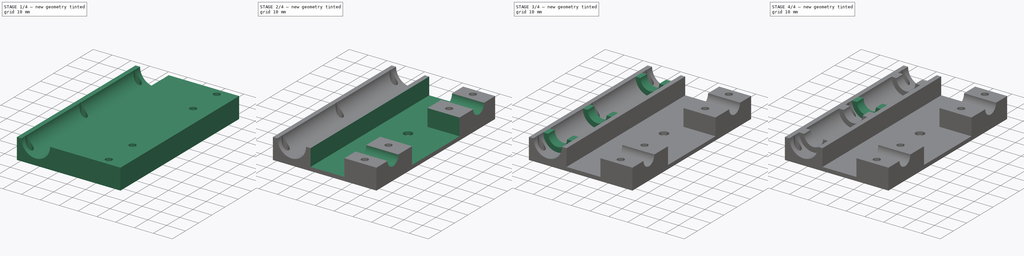
[diagram: build sequence overview — one tinted view per stage of 4, left to right]
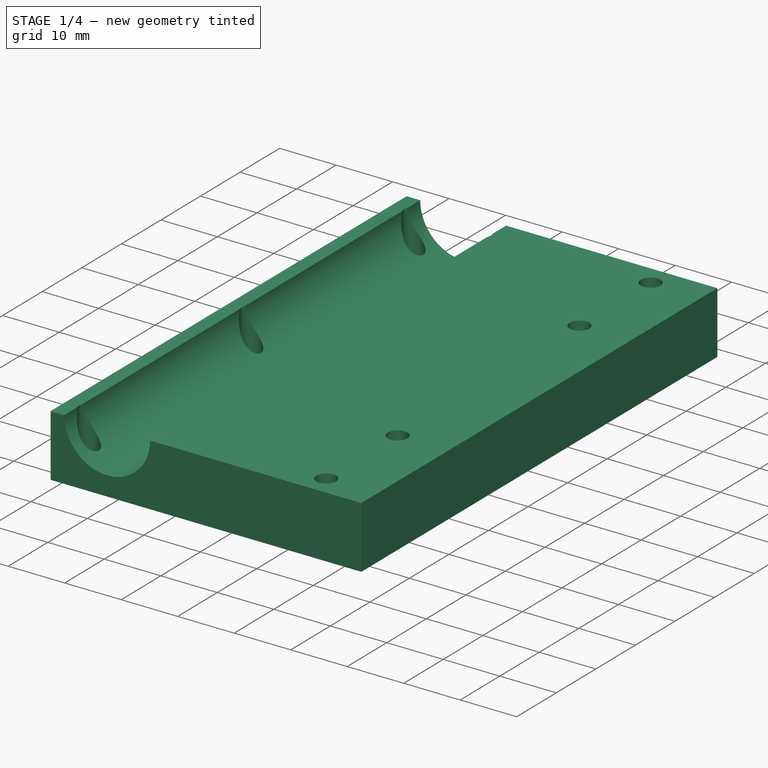
[diagram: stage 1 of 4 — iso view after this stage's code; geometry added in this stage tinted green]
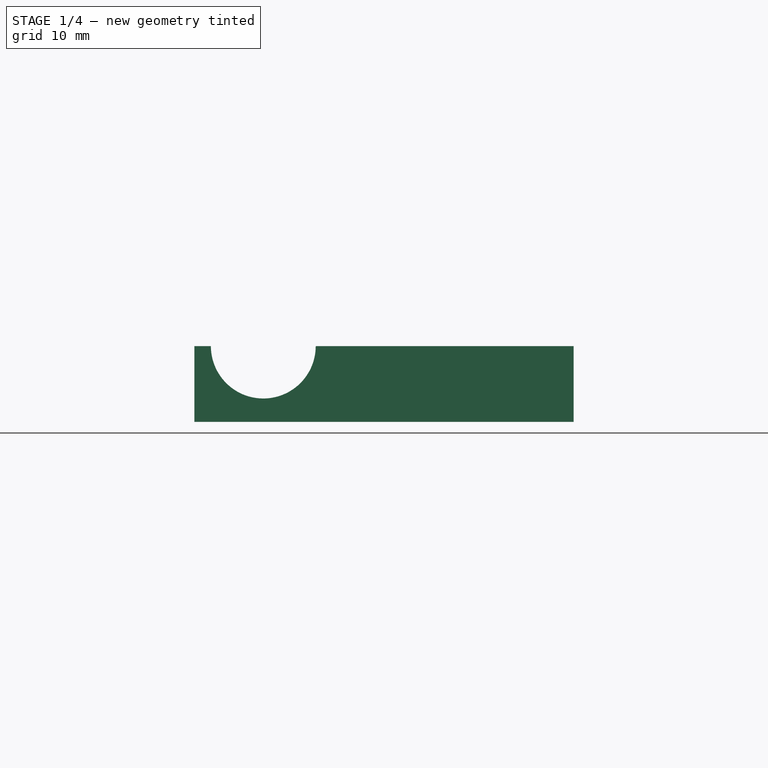
[diagram: stage 1 of 4 — front view after this stage's code; geometry added in this stage tinted green]
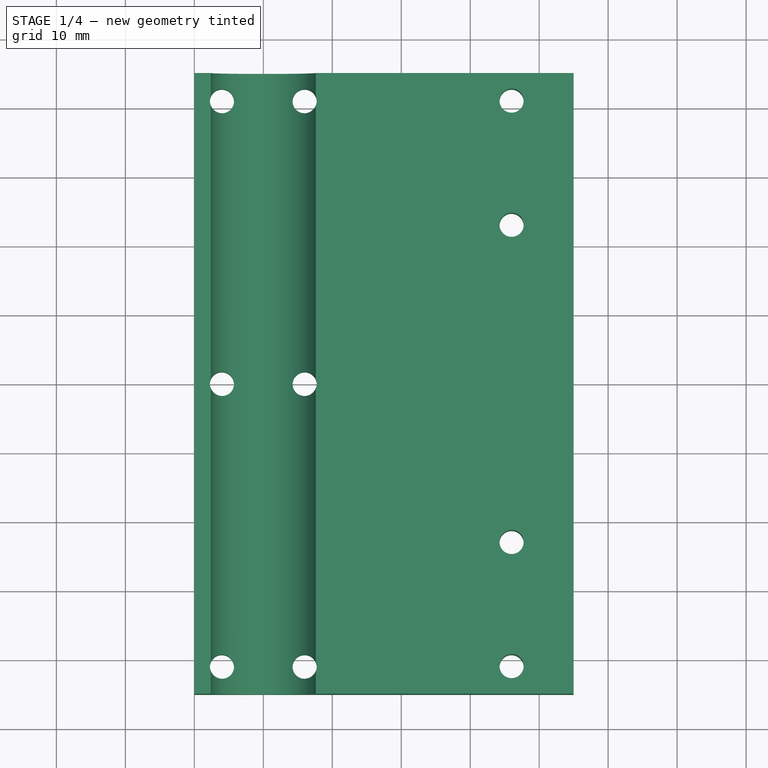
[diagram: stage 1 of 4 — top view after this stage's code; geometry added in this stage tinted green]
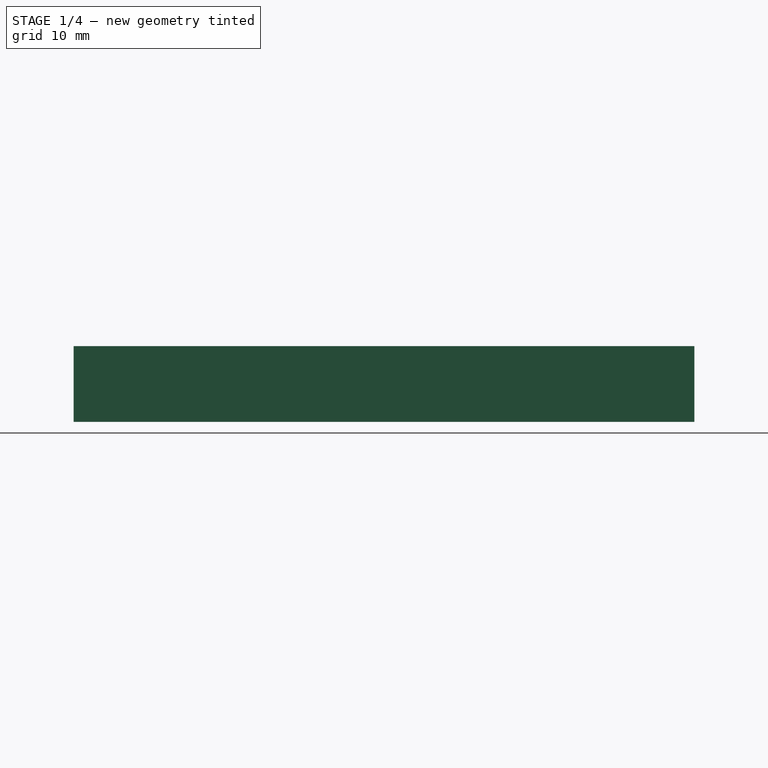
[diagram: stage 1 of 4 — right view after this stage's code; geometry added in this stage tinted green]
FCSTD DOCUMENT  (FreeCAD 0.16R4945 (Git))
Label: XY-block-top wide
License: CC-BY 3.0
LicenseURL: http://creativecommons.org/licenses/by/3.0/
objects: Sketcher::SketchObject×12, PartDesign::Pocket×7, PartDesign::Pad×5, Part::MultiFuse×1
note: 37 computed .brp shape members not serialized (recipe doc carries the construction recipe); baked Part::Feature solids carry a one-line shape summary decoded from their .brp

FEATURE [Sketcher::SketchObject] Sketch
  sketch-geometry (4):
    g0: LineSegment StartX=-10 StartY=-45 StartZ=0 EndX=45 EndY=-45 EndZ=0
    g1: LineSegment StartX=45 StartY=-45 StartZ=0 EndX=45 EndY=45 EndZ=0
    g2: LineSegment StartX=45 StartY=45 StartZ=0 EndX=-10 EndY=45 EndZ=0
    g3: LineSegment StartX=-10 StartY=45 StartZ=0 EndX=-10 EndY=-45 EndZ=0
  constraints (12):
    c: Coincident(g0,g1)
    c: Coincident(g1,g2)
    c: Coincident(g2,g3)
    c: Coincident(g3,g0)
    c: Horizontal(g0)
    c: Horizontal(g2)
    c: Vertical(g1)
    c: Vertical(g3)
    c: DistanceX(g0) = 55
    c: DistanceY(g1) = 90
    c: DistanceX(g0) = -10
    c: DistanceY(g0) = -45
FEATURE [PartDesign::Pad] Pad
  Length = 11
  Length2 = 100
  Sketch = -> Sketch
  Type = 0
FEATURE [Sketcher::SketchObject] Sketch001
  Placement = pos=(0,-45,0) rot=(1,0,0;1.5708rad)
  Support = -> Pad [Face1]
  sketch-geometry (1):
    g0: Circle CenterX=0 CenterY=11 CenterZ=0 NormalX=0 NormalY=0 NormalZ=1 Radius=7.6
  constraints (3):
    c: Radius(g0) = 7.6
    c: DistanceX(g0) = 0
    c: DistanceY(g0) = 11
FEATURE [PartDesign::Pocket] Pocket  label="Pocket-lm8uu-hole"
  Length = 5
  Sketch = -> Sketch001
  Type = 1
FEATURE [Sketcher::SketchObject] Sketch002
  ExternalGeometry = -> [Pocket]
  Placement = pos=(0,0,11) rot=(0,0,1;0rad)
  Support = -> Pocket [Face4]
  sketch-geometry (17):
    g0: Circle CenterX=-6 CenterY=41 CenterZ=0 NormalX=0 NormalY=0 NormalZ=1 Radius=1.75
    g1: Circle CenterX=-6 CenterY=-41 CenterZ=0 NormalX=0 NormalY=0 NormalZ=1 Radius=1.75
    g2: LineSegment [constr] StartX=-6 StartY=41 StartZ=0 EndX=36 EndY=41 EndZ=0
    g3: LineSegment [constr] StartX=36 StartY=41 StartZ=0 EndX=36 EndY=-41 EndZ=0
    g4: LineSegment [constr] StartX=36 StartY=-41 StartZ=0 EndX=-6 EndY=-41 EndZ=0
    g5: Circle CenterX=6 CenterY=41 CenterZ=0 NormalX=0 NormalY=0 NormalZ=1 Radius=1.75
    g6: Circle CenterX=6 CenterY=-41 CenterZ=0 NormalX=0 NormalY=0 NormalZ=1 Radius=1.75
    g7: Circle CenterX=6 CenterY=0 CenterZ=0 NormalX=0 NormalY=0 NormalZ=1 Radius=1.75
    g8: Circle CenterX=-6 CenterY=0 CenterZ=0 NormalX=0 NormalY=0 NormalZ=1 Radius=1.75
    g9: LineSegment [constr] StartX=6 StartY=41 StartZ=0 EndX=6 EndY=-41 EndZ=0
    g10: LineSegment [constr] StartX=-6 StartY=0 StartZ=0 EndX=6 EndY=0 EndZ=0
    g11: LineSegment [constr] StartX=-6 StartY=-41 StartZ=0 EndX=-6 EndY=0 EndZ=0
    g12: LineSegment [constr] StartX=-6 StartY=0 StartZ=0 EndX=-6 EndY=41 EndZ=0
    g13: Circle CenterX=36 CenterY=41 CenterZ=0 NormalX=0 NormalY=0 NormalZ=1 Radius=1.75
    g14: Circle CenterX=36 CenterY=23 CenterZ=0 NormalX=0 NormalY=0 NormalZ=1 Radius=1.75
    g15: Circle CenterX=36 CenterY=-23 CenterZ=0 NormalX=0 NormalY=0 NormalZ=1 Radius=1.75
    g16: Circle CenterX=36 CenterY=-41 CenterZ=0 NormalX=0 NormalY=0 NormalZ=1 Radius=1.75
  constraints (44):
    c: Radius(g0) = 1.75
    c: Equal(g0,g1)
    c: Coincident(g2,g3)
    c: Coincident(g3,g4)
    c: Horizontal(g2)
    c: Horizontal(g4)
    c: Vertical(g3)
    c: Coincident(g0,g2)
    c: Coincident(g4,g1)
    c: Equal(g0,g5)
    c: Equal(g0,g6)
    c: Equal(g8,g0)
    c: Equal(g7,g0)
    c: Coincident(g9,g5)
    c: Coincident(g9,g6)
    c: PointOnObject(g10,g9)
    c: Horizontal(g10)
    c: Vertical(g9)
    c: PointOnObject(g5,g2)
    c: PointOnObject(g6,g4)
    c: Coincident(g8,g10)
    c: Coincident(g7,g10)
    c: Coincident(g11,g1)
    c: Coincident(g11,g8)
    c: Vertical(g11)
    c: Coincident(g12,g8)
    c: Coincident(g12,g0)
    c: Vertical(g12)
    c: Equal(g12,g11)
    c: DistanceX(g1,g6) = 12
    c: DistanceX(g-1,g8) = -6
    c: DistanceY(g-1,g1) = -41
    c: Symmetric(g-3,g-3,g10)
    c: Coincident(g13,g2)
    c: PointOnObject(g14,g3)
    c: PointOnObject(g15,g3)
    c: Coincident(g16,g3)
    c: Radius(g16) = 1.75
    c: Equal(g16,g15)
    c: Equal(g15,g14)
    c: Equal(g14,g13)
    c: Distance(g2,g14) = 18
    c: Distance(g15,g3) = 18
    c: Distance(g0,g2) = 42
FEATURE [PartDesign::Pocket] Pocket001  label="Pocket-mount-holes"
  Length = 5
  Sketch = -> Sketch002
  Type = 1
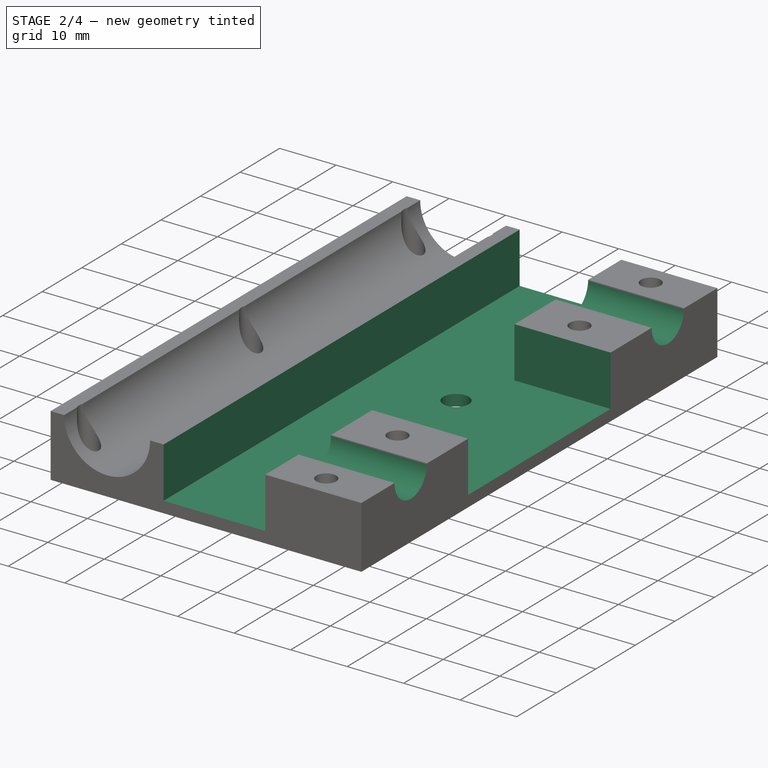
[diagram: stage 2 of 4 — iso view after this stage's code; geometry added in this stage tinted green]
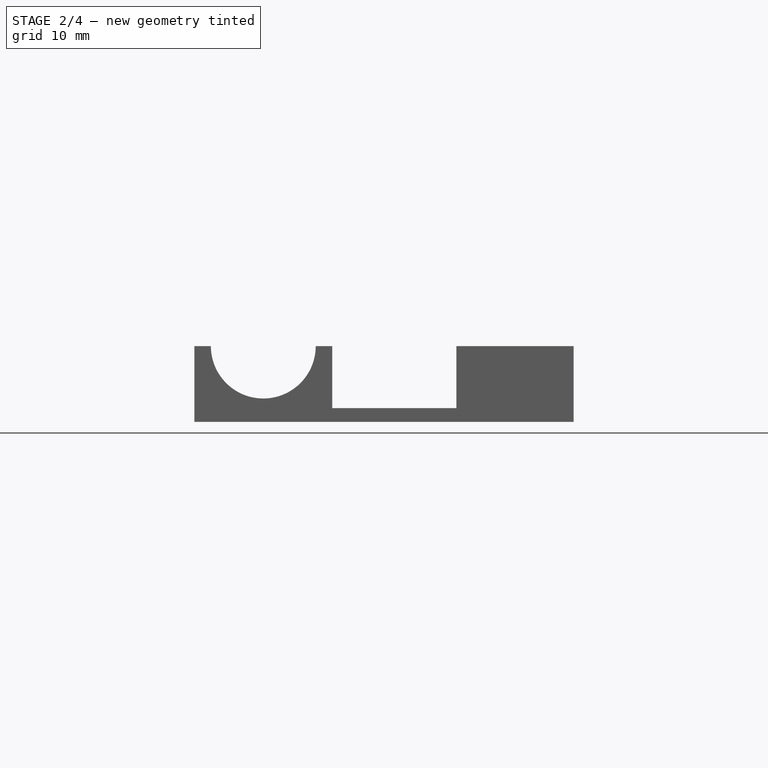
[diagram: stage 2 of 4 — front view after this stage's code; geometry added in this stage tinted green]
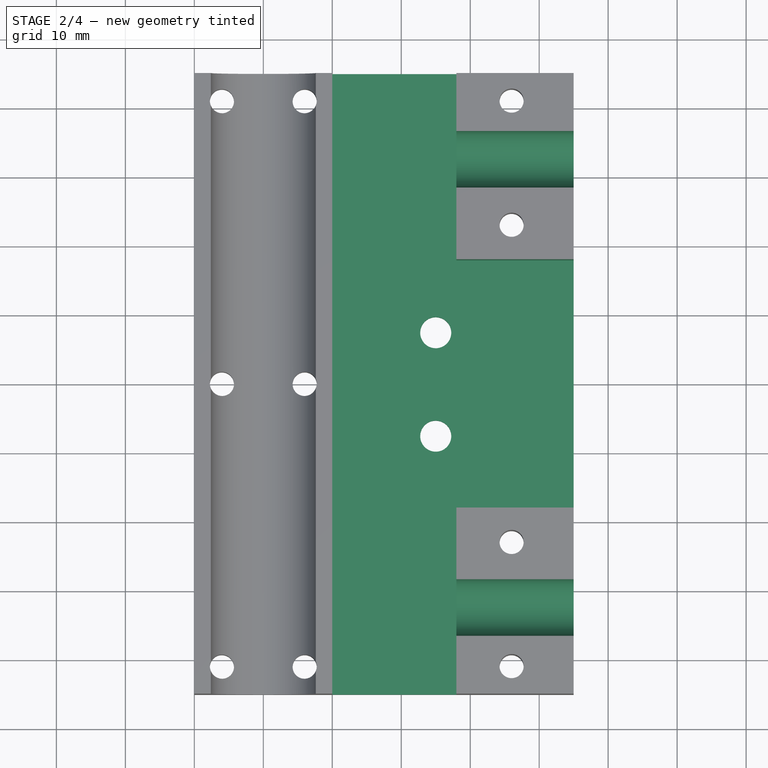
[diagram: stage 2 of 4 — top view after this stage's code; geometry added in this stage tinted green]
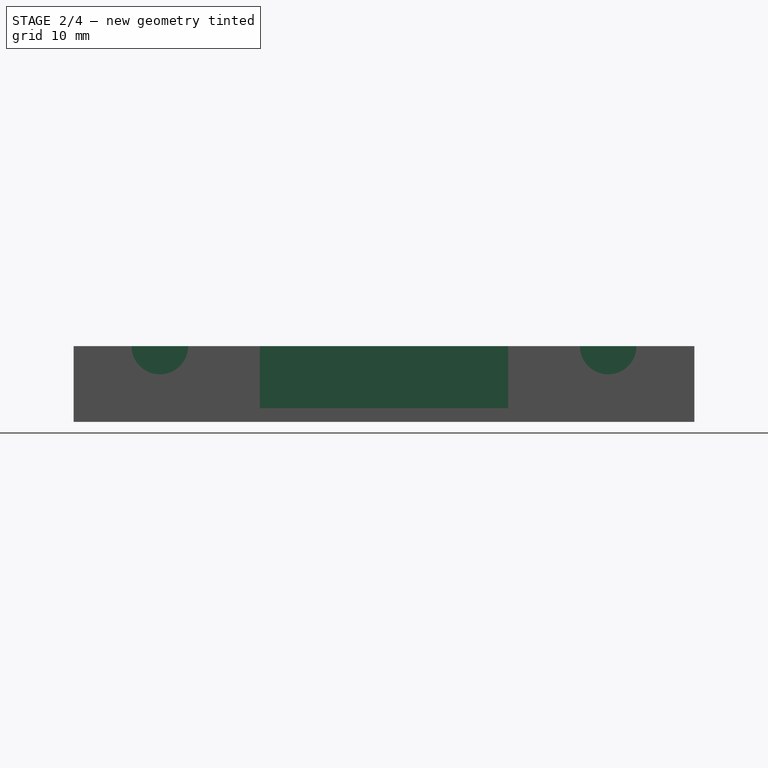
[diagram: stage 2 of 4 — right view after this stage's code; geometry added in this stage tinted green]
FEATURE [Sketcher::SketchObject] Sketch003
  Placement = pos=(0,0,11) rot=(0,0,1;0rad)
  Support = -> Pocket001 [Face4]
  sketch-geometry (8):
    g0: LineSegment StartX=10 StartY=50 StartZ=0 EndX=10 EndY=-50 EndZ=0
    g1: LineSegment StartX=10 StartY=-50 StartZ=0 EndX=28 EndY=-50 EndZ=0
    g2: LineSegment StartX=28 StartY=-50 StartZ=0 EndX=28 EndY=-18 EndZ=0
    g3: LineSegment StartX=28 StartY=-18 StartZ=0 EndX=48 EndY=-18 EndZ=0
    g4: LineSegment StartX=48 StartY=-18 StartZ=0 EndX=48 EndY=18 EndZ=0
    g5: LineSegment StartX=48 StartY=18 StartZ=0 EndX=28 EndY=18 EndZ=0
    g6: LineSegment StartX=28 StartY=18 StartZ=0 EndX=28 EndY=50 EndZ=0
    g7: LineSegment StartX=28 StartY=50 StartZ=0 EndX=10 EndY=50 EndZ=0
  constraints (24):
    c: Vertical(g0)
    c: Horizontal(g1)
    c: Coincident(g1,g2)
    c: Vertical(g2)
    c: Horizontal(g3)
    c: Coincident(g3,g4)
    c: Vertical(g4)
    c: Coincident(g4,g5)
    c: Horizontal(g5)
    c: Vertical(g6)
    c: Coincident(g6,g7)
    c: Coincident(g7,g0)
    c: Horizontal(g7)
    c: Coincident(g1,g0)
    c: Equal(g1,g7)
    c: Equal(g6,g2)
    c: DistanceX(g-1,g0) = 10
    c: DistanceX(g7) = -18
    c: DistanceY(g-1,g0) = 50
    c: DistanceY(g4) = 36
    c: Distance(g3) = 20
    c: Coincident(g5,g6)
    c: Coincident(g3,g2)
    c: Symmetric(g1,g6,g-1)
FEATURE [PartDesign::Pocket] Pocket002  label="Pocket-belt-path"
  Length = 9
  Sketch = -> Sketch003
  Type = 0
FEATURE [Sketcher::SketchObject] Sketch004
  Placement = pos=(0,0,0) rot=(1,0,0;3.14159rad)
  Support = -> Pocket002 [Face2]
  sketch-geometry (3):
    g0: Circle CenterX=25 CenterY=7.5 CenterZ=0 NormalX=0 NormalY=0 NormalZ=1 Radius=2.25
    g1: Circle CenterX=25 CenterY=-7.5 CenterZ=0 NormalX=0 NormalY=0 NormalZ=1 Radius=2.25
    g2: LineSegment [constr] StartX=25 StartY=7.5 StartZ=0 EndX=25 EndY=-7.5 EndZ=0
  constraints (8):
    c: Coincident(g2,g0)
    c: Coincident(g2,g1)
    c: Vertical(g2)
    c: DistanceX(g-1,g1) = 25
    c: Equal(g0,g1)
    c: Radius(g0) = 2.25
    c: Distance(g2) = 15
    c: DistanceY(g-1,g0) = 7.5
FEATURE [PartDesign::Pocket] Pocket003  label="Pocket-idler-pulleys-holes"
  Length = 5
  Sketch = -> Sketch004
  Type = 1
FEATURE [Sketcher::SketchObject] Sketch008
  Placement = pos=(45,0,0) rot=(0.57735,0.57735,0.57735;2.0944rad)
  Support = -> Pocket003 [Face3]
  sketch-geometry (2):
    g0: Circle CenterX=-32.5 CenterY=11 CenterZ=0 NormalX=0 NormalY=0 NormalZ=1 Radius=4.1
    g1: Circle CenterX=32.5 CenterY=11 CenterZ=0 NormalX=0 NormalY=0 NormalZ=1 Radius=4.1
  constraints (5):
    c: Symmetric(g0,g1,g-2)
    c: Equal(g0,g1)
    c: Radius(g0) = 4.1
    c: DistanceY(g-1,g0) = 11
    c: DistanceX(g0,g1) = 65
FEATURE [PartDesign::Pocket] Pocket005  label="Pocket-x-axis-holes"
  Length = 20
  Sketch = -> Sketch008
  Type = 0
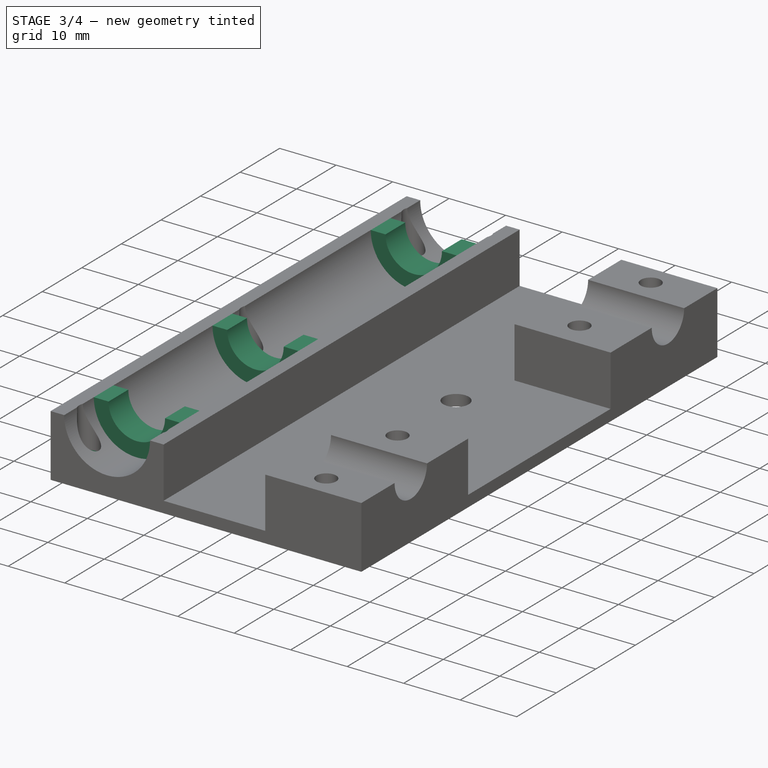
[diagram: stage 3 of 4 — iso view after this stage's code; geometry added in this stage tinted green]
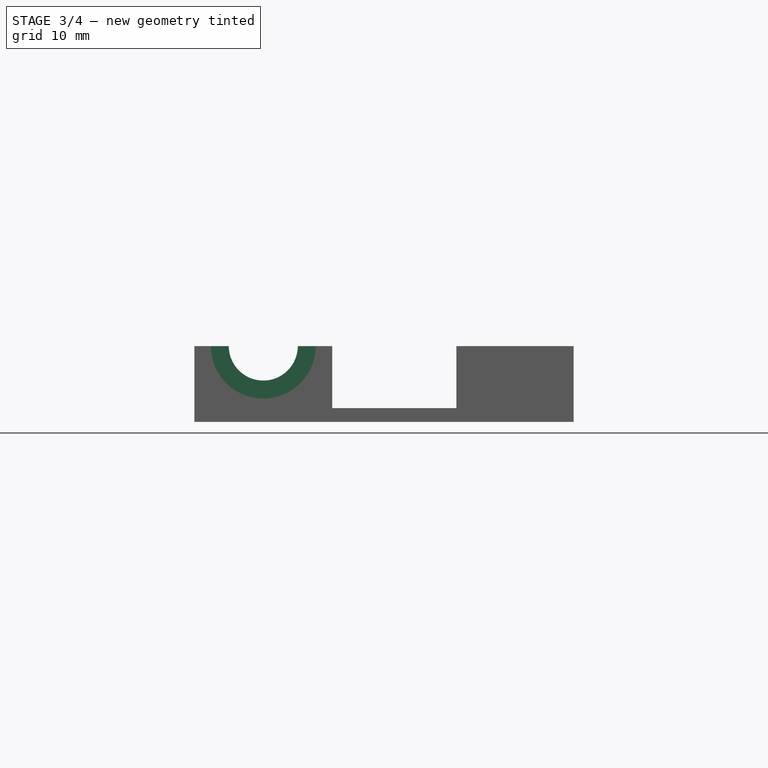
[diagram: stage 3 of 4 — front view after this stage's code; geometry added in this stage tinted green]
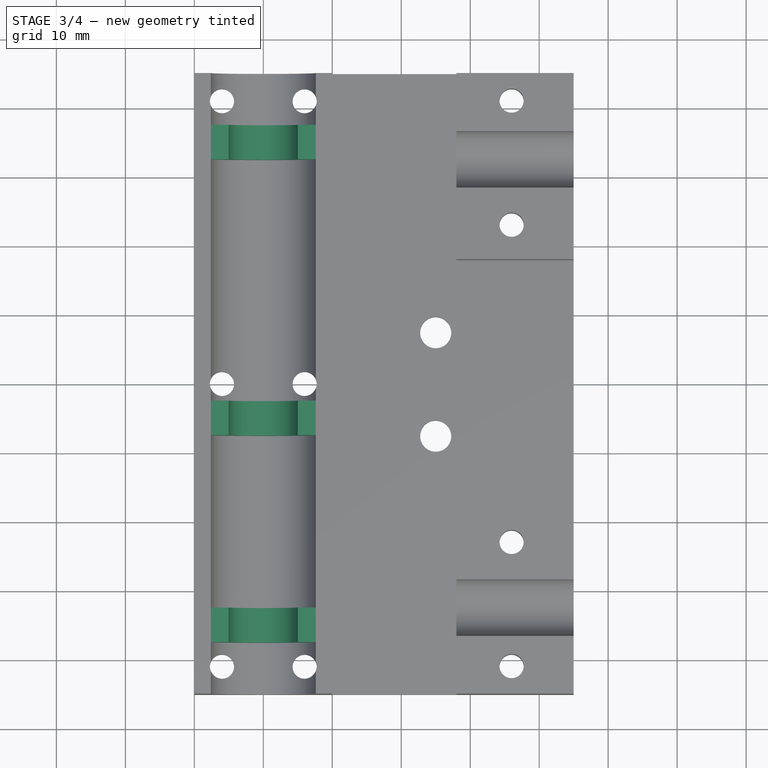
[diagram: stage 3 of 4 — top view after this stage's code; geometry added in this stage tinted green]
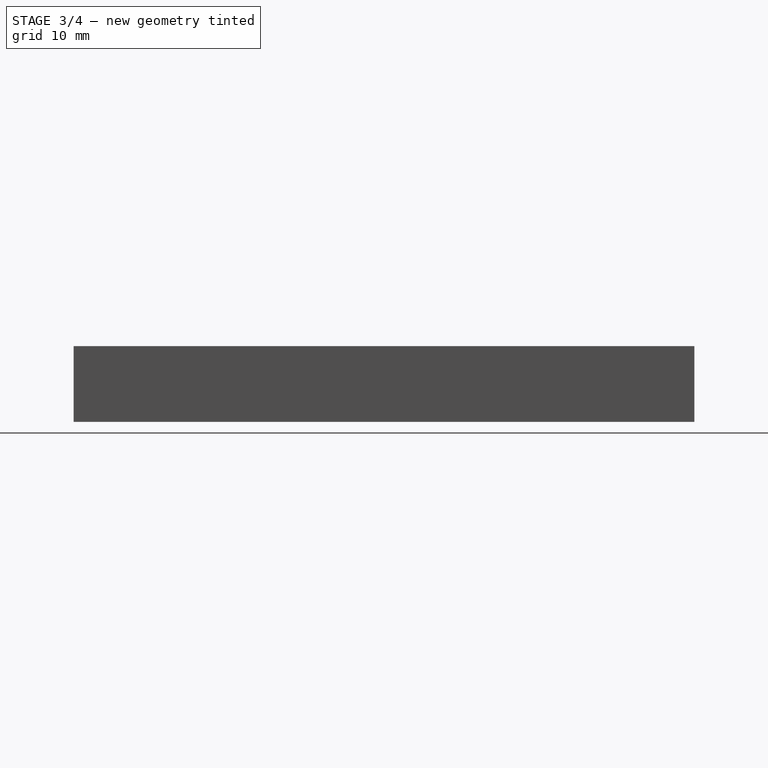
[diagram: stage 3 of 4 — right view after this stage's code; geometry added in this stage tinted green]
FEATURE [PartDesign::Pad] Pad002
  Length = 5
  Length2 = 100
  Placement = pos=(0,-7.5,0) rot=(1,0,0;1.5708rad)
  Reversed = true
  Sketch = -> Sketch019
  Type = 0
FEATURE [PartDesign::Pad] Pad003
  Length = 5
  Length2 = 100
  Placement = pos=(0,32.5,0) rot=(1,0,0;1.5708rad)
  Reversed = true
  Sketch = -> Sketch020
  Type = 0
FEATURE [PartDesign::Pad] Pad004
  Length = 5
  Length2 = 100
  Placement = pos=(0,-32.5,0) rot=(1,0,0;1.5708rad)
  Sketch = -> Sketch021
  Type = 0
FEATURE [Sketcher::SketchObject] Sketch022
  ExternalGeometry = -> [Pocket005]
  Placement = pos=(0,0,0) rot=(1,0,0;3.14159rad)
  Support = -> Pocket005 [Face2]
  sketch-geometry (10):
    g0: Circle CenterX=-6 CenterY=-41 CenterZ=0 NormalX=0 NormalY=0 NormalZ=1 Radius=2.9
    g1: Circle CenterX=6 CenterY=-41 CenterZ=0 NormalX=0 NormalY=0 NormalZ=1 Radius=2.9
    g2: Circle CenterX=36 CenterY=-41 CenterZ=0 NormalX=0 NormalY=0 NormalZ=1 Radius=2.9
    g3: Circle CenterX=6 CenterY=41 CenterZ=0 NormalX=0 NormalY=0 NormalZ=1 Radius=2.9
    g4: Circle CenterX=36 CenterY=41 CenterZ=0 NormalX=0 NormalY=0 NormalZ=1 Radius=2.9
    g5: Circle CenterX=-6 CenterY=41 CenterZ=0 NormalX=0 NormalY=0 NormalZ=1 Radius=2.9
    g6: Circle CenterX=-6 CenterY=0 CenterZ=0 NormalX=0 NormalY=0 NormalZ=1 Radius=2.9
    g7: Circle CenterX=6 CenterY=0 CenterZ=0 NormalX=0 NormalY=0 NormalZ=1 Radius=2.9
    g8: Circle CenterX=36 CenterY=23 CenterZ=0 NormalX=0 NormalY=0 NormalZ=1 Radius=2.9
    g9: Circle CenterX=36 CenterY=-23 CenterZ=0 NormalX=0 NormalY=0 NormalZ=1 Radius=2.9
  constraints (20):
    c: Radius(g0) = 2.9
    c: Equal(g0,g4)
    c: Equal(g0,g1)
    c: Equal(g1,g2)
    c: Equal(g2,g3)
    c: Radius(g5) = 2.9
    c: Equal(g5,g6)
    c: Equal(g5,g7)
    c: Equal(g7,g8)
    c: Equal(g8,g9)
    c: Coincident(g0,g-3)
    c: Coincident(g1,g-4)
    c: Coincident(g2,g-5)
    c: Coincident(g9,g-6)
    c: Coincident(g7,g-7)
    c: Coincident(g6,g-8)
    c: Coincident(g8,g-9)
    c: Coincident(g4,g-10)
    c: Coincident(g3,g-11)
    c: Coincident(g5,g-12)
FEATURE [PartDesign::Pocket] Pocket007
  Length = 3.5
  Sketch = -> Sketch022
  Type = 0
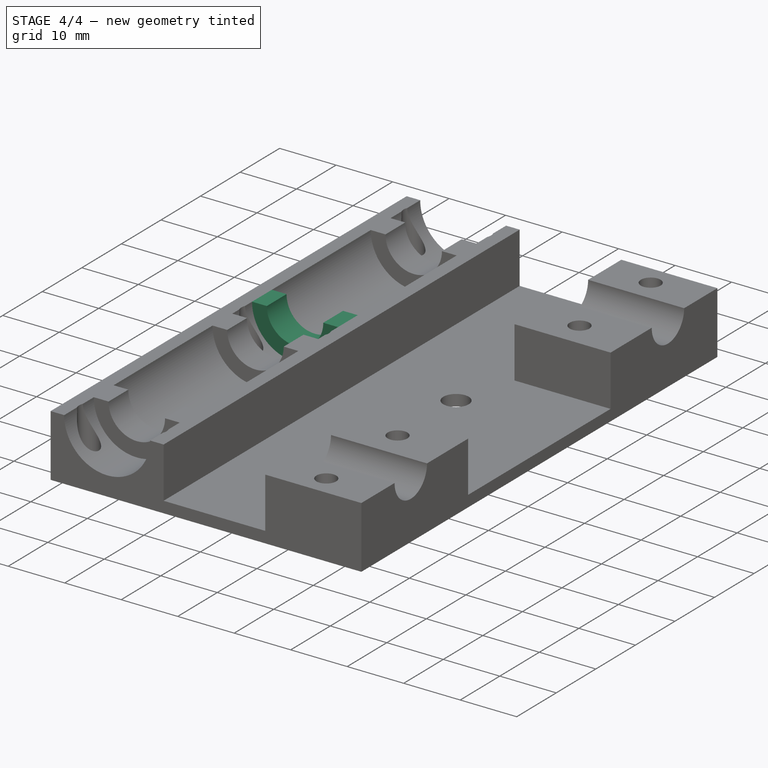
[diagram: stage 4 of 4 — iso view after this stage's code; geometry added in this stage tinted green]
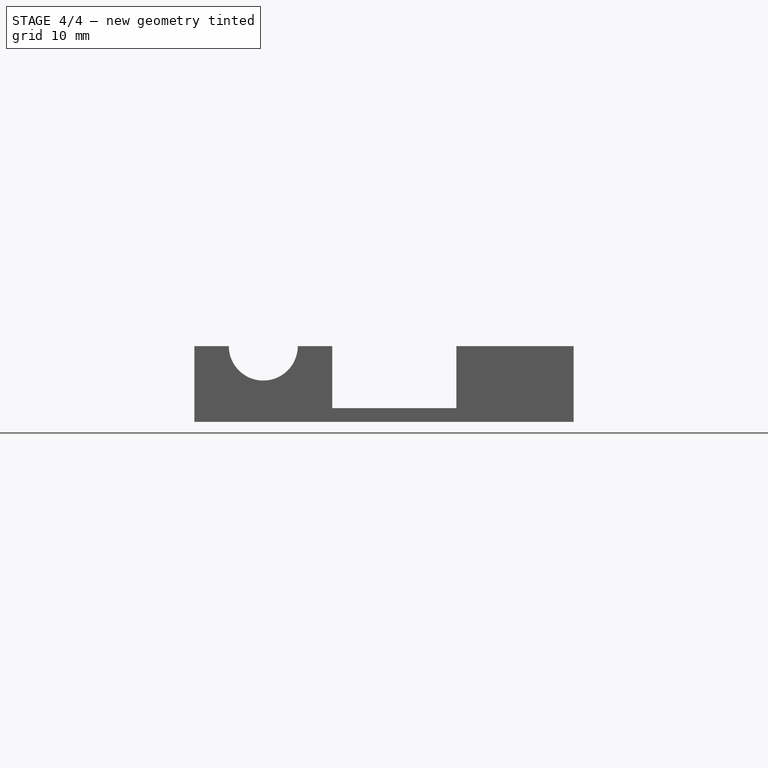
[diagram: stage 4 of 4 — front view after this stage's code; geometry added in this stage tinted green]
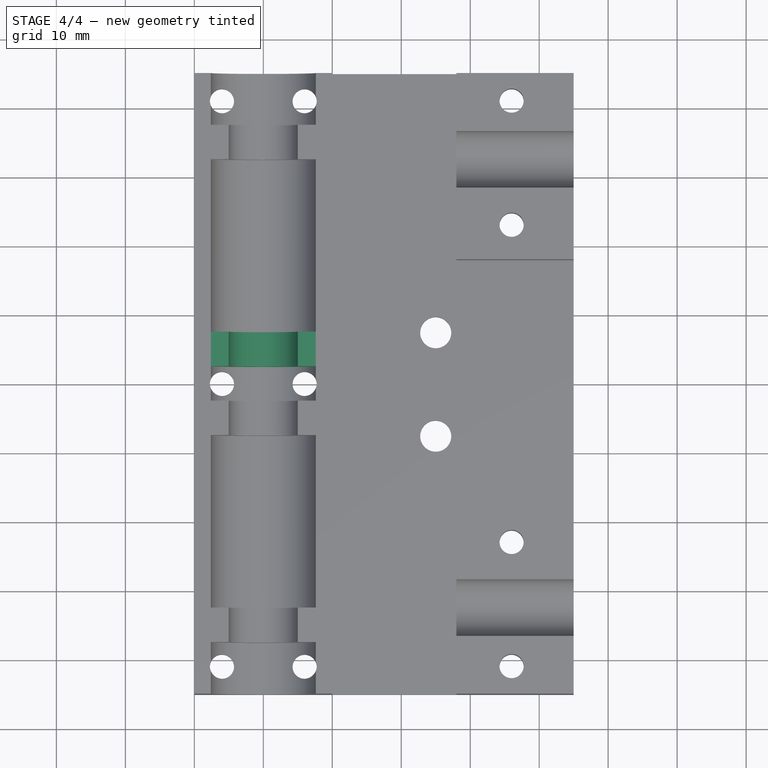
[diagram: stage 4 of 4 — top view after this stage's code; geometry added in this stage tinted green]
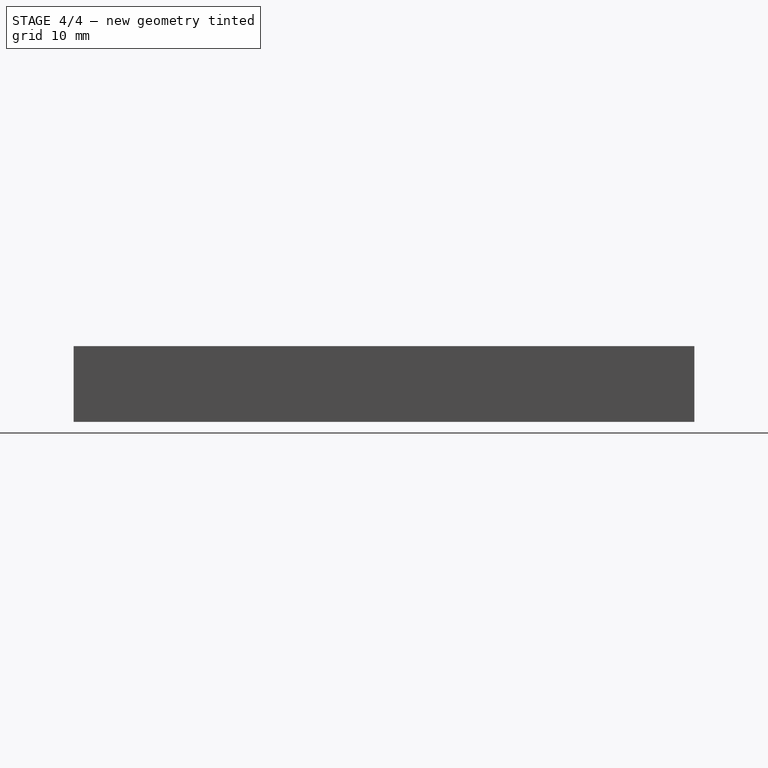
[diagram: stage 4 of 4 — right view after this stage's code; geometry added in this stage tinted green]
FEATURE [Sketcher::SketchObject] Sketch018
  Placement = pos=(0,7.5,0) rot=(1,0,0;1.5708rad)
  sketch-geometry (4):
    g0: ArcOfCircle CenterX=0 CenterY=11 CenterZ=0 NormalX=0 NormalY=0 NormalZ=1 Radius=7.6 StartAngle=3.14159 EndAngle=6.28319
    g1: LineSegment StartX=-7.6 StartY=11 StartZ=0 EndX=-5 EndY=11 EndZ=0
    g2: LineSegment StartX=7.6 StartY=11 StartZ=0 EndX=5 EndY=11 EndZ=0
    g3: ArcOfCircle CenterX=0 CenterY=11 CenterZ=0 NormalX=0 NormalY=0 NormalZ=1 Radius=5 StartAngle=3.14159 EndAngle=6.28319
  constraints (13):
    c: PointOnObject(g0,g-2)
    c: Coincident(g1,g0)
    c: Horizontal(g1)
    c: Coincident(g2,g0)
    c: Horizontal(g2)
    c: Coincident(g3,g0)
    c: Coincident(g3,g1)
    c: Coincident(g3,g2)
    c: DistanceY(g-1,g0) = 11
    c: Radius(g3) = 5
    c: Radius(g0) = 7.6
    c: DistanceY(g1,g0) = 0
    c: DistanceY(g2,g0) = 0
FEATURE [Sketcher::SketchObject] Sketch019
  Placement = pos=(0,-7.5,0) rot=(1,0,0;1.5708rad)
  sketch-geometry (4):
    g0: ArcOfCircle CenterX=0 CenterY=11 CenterZ=0 NormalX=0 NormalY=0 NormalZ=1 Radius=7.6 StartAngle=3.14159 EndAngle=6.28319
    g1: LineSegment StartX=-7.6 StartY=11 StartZ=0 EndX=-5 EndY=11 EndZ=0
    g2: LineSegment StartX=7.6 StartY=11 StartZ=0 EndX=5 EndY=11 EndZ=0
    g3: ArcOfCircle CenterX=0 CenterY=11 CenterZ=0 NormalX=0 NormalY=0 NormalZ=1 Radius=5 StartAngle=3.14159 EndAngle=6.28319
  constraints (13):
    c: PointOnObject(g0,g-2)
    c: Coincident(g1,g0)
    c: Horizontal(g1)
    c: Coincident(g2,g0)
    c: Horizontal(g2)
    c: Coincident(g3,g0)
    c: Coincident(g3,g1)
    c: Coincident(g3,g2)
    c: DistanceY(g-1,g0) = 11
    c: Radius(g3) = 5
    c: Radius(g0) = 7.6
    c: DistanceY(g1,g0) = 0
    c: DistanceY(g2,g0) = 0
FEATURE [Sketcher::SketchObject] Sketch020
  Placement = pos=(0,32.5,0) rot=(1,0,0;1.5708rad)
  sketch-geometry (4):
    g0: ArcOfCircle CenterX=0 CenterY=11 CenterZ=0 NormalX=0 NormalY=0 NormalZ=1 Radius=7.6 StartAngle=3.14159 EndAngle=6.28319
    g1: LineSegment StartX=-7.6 StartY=11 StartZ=0 EndX=-5 EndY=11 EndZ=0
    g2: LineSegment StartX=7.6 StartY=11 StartZ=0 EndX=5 EndY=11 EndZ=0
    g3: ArcOfCircle CenterX=0 CenterY=11 CenterZ=0 NormalX=0 NormalY=0 NormalZ=1 Radius=5 StartAngle=3.14159 EndAngle=6.28319
  constraints (13):
    c: PointOnObject(g0,g-2)
    c: Coincident(g1,g0)
    c: Horizontal(g1)
    c: Coincident(g2,g0)
    c: Horizontal(g2)
    c: Coincident(g3,g0)
    c: Coincident(g3,g1)
    c: Coincident(g3,g2)
    c: DistanceY(g-1,g0) = 11
    c: Radius(g3) = 5
    c: Radius(g0) = 7.6
    c: DistanceY(g1,g0) = 0
    c: DistanceY(g2,g0) = 0
FEATURE [Sketcher::SketchObject] Sketch021
  Placement = pos=(0,-32.5,0) rot=(1,0,0;1.5708rad)
  sketch-geometry (4):
    g0: ArcOfCircle CenterX=0 CenterY=11 CenterZ=0 NormalX=0 NormalY=0 NormalZ=1 Radius=7.6 StartAngle=3.14159 EndAngle=6.28319
    g1: LineSegment StartX=-7.6 StartY=11 StartZ=0 EndX=-5 EndY=11 EndZ=0
    g2: LineSegment StartX=7.6 StartY=11 StartZ=0 EndX=5 EndY=11 EndZ=0
    g3: ArcOfCircle CenterX=0 CenterY=11 CenterZ=0 NormalX=0 NormalY=0 NormalZ=1 Radius=5 StartAngle=3.14159 EndAngle=6.28319
  constraints (13):
    c: PointOnObject(g0,g-2)
    c: Coincident(g1,g0)
    c: Horizontal(g1)
    c: Coincident(g2,g0)
    c: Horizontal(g2)
    c: Coincident(g3,g0)
    c: Coincident(g3,g1)
    c: Coincident(g3,g2)
    c: DistanceY(g-1,g0) = 11
    c: Radius(g3) = 5
    c: Radius(g0) = 7.6
    c: DistanceY(g1,g0) = 0
    c: DistanceY(g2,g0) = 0
FEATURE [PartDesign::Pad] Pad001
  Length = 5
  Length2 = 100
  Placement = pos=(0,7.5,0) rot=(1,0,0;1.5708rad)
  Sketch = -> Sketch018
  Type = 0
FEATURE [Sketcher::SketchObject] Sketch023
  Placement = pos=(0,0,2) rot=(0,0,1;0rad)
  Support = -> Pocket007 [Face6]
  sketch-geometry (6):
    g0: LineSegment StartX=40.5737 StartY=18 StartZ=0 EndX=32 EndY=3.425 EndZ=0
    g1: LineSegment StartX=32 StartY=3.425 StartZ=0 EndX=32 EndY=-3.425 EndZ=0
    g2: LineSegment StartX=32 StartY=-3.425 StartZ=0 EndX=40.5737 EndY=-18 EndZ=0
    g3: LineSegment StartX=40.5737 StartY=18 StartZ=0 EndX=51.5737 EndY=18 EndZ=0
    g4: LineSegment StartX=40.5737 StartY=-18 StartZ=0 EndX=51.5737 EndY=-18 EndZ=0
    g5: LineSegment StartX=51.5737 StartY=-18 StartZ=0 EndX=51.5737 EndY=18 EndZ=0
  constraints (17):
    c: Coincident(g0,g1)
    c: Vertical(g1)
    c: Coincident(g1,g2)
    c: Symmetric(g0,g1,g-1)
    c: Symmetric(g0,g2,g-1)
    c: DistanceX(g-2,g0) = 32
    c: Distance(g1) = 6.85
    c: Coincident(g0,g3)
    c: Horizontal(g3)
    c: Angle(g0,g3) = 2.10253
    c: Coincident(g2,g4)
    c: Horizontal(g4)
    c: Coincident(g4,g5)
    c: DistanceY(g0,g2) = -36
    c: Vertical(g5)
    c: Coincident(g5,g3)
    c: Distance(g3) = 11
FEATURE [PartDesign::Pocket] Pocket008
  Length = 5
  Sketch = -> Sketch023
  Type = 0
FEATURE [Part::MultiFuse] Fusion
  Shapes = -> [Pocket007,Pad001,Pad002,Pad003,Pad004]
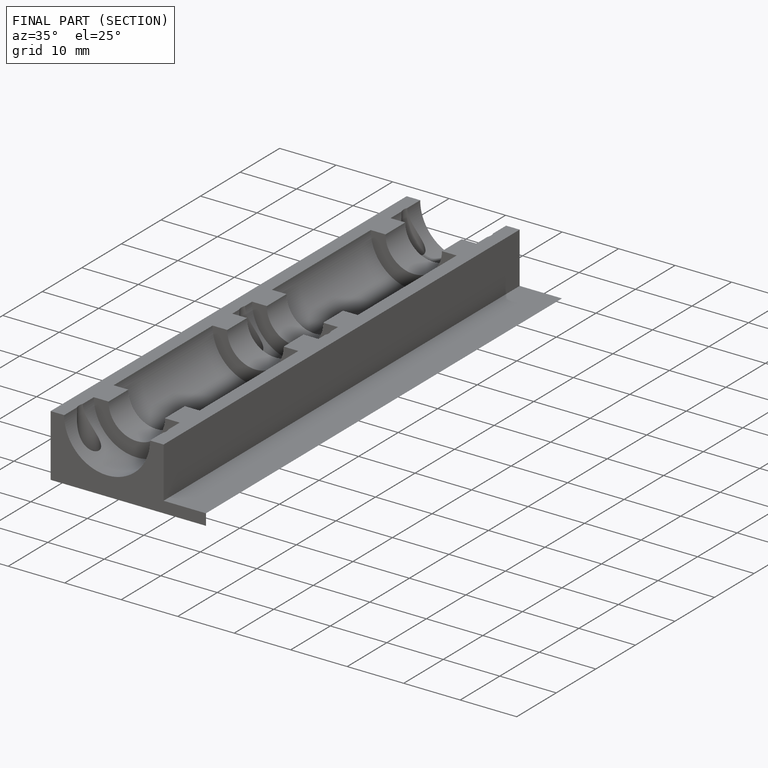
[diagram: finished part — half-section view (interior)]
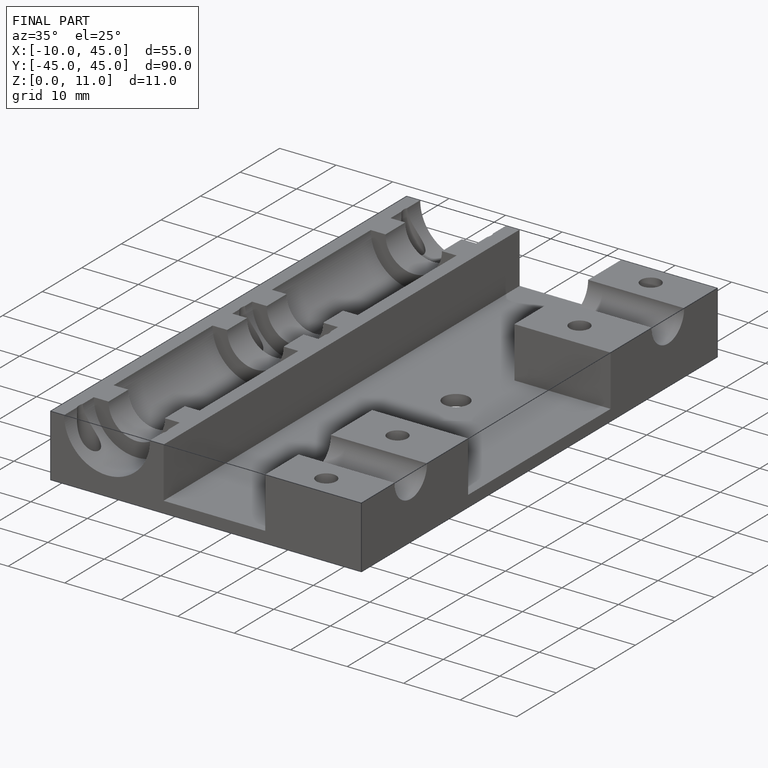
[diagram: finished part — iso view with bounding-box wireframe]
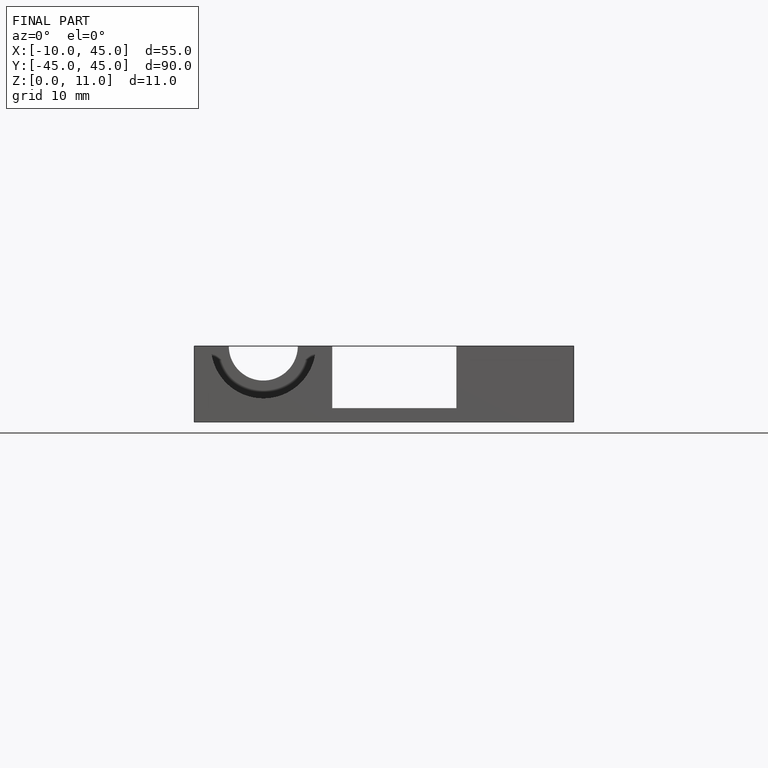
[diagram: finished part — front view with bounding-box wireframe]
